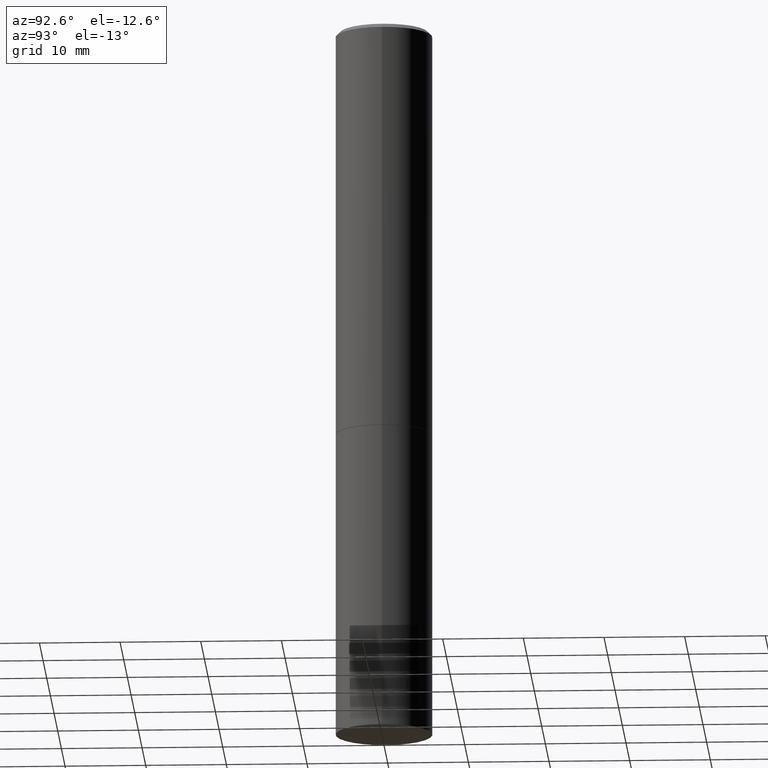
[diagram: clean part render]
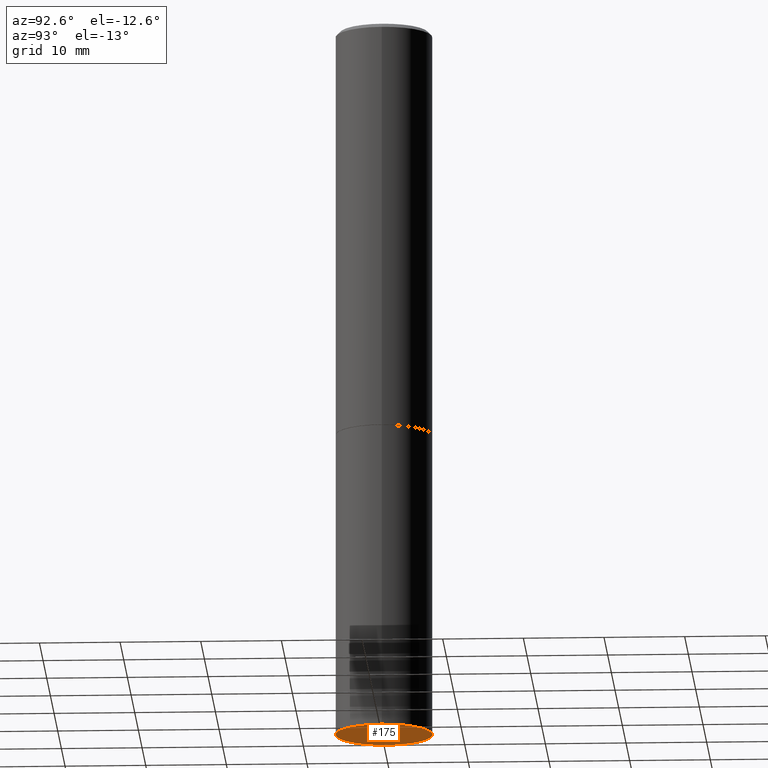
[diagram: same view with one face highlighted and labeled with its STEP entity id]
A machine part, auxiliary view. The second image highlights one B-rep face of the part: STEP entity #175.
In plain terms, the highlighted planar face has unit normal (0, -0, -1).
Its self-contained STEP definition (entity closure, byte-faithful):
#1 = ORIENTED_EDGE ( 'NONE', *, *, #260, .F. ) ;
#26 = VERTEX_POINT ( 'NONE', #94 ) ;
#55 = AXIS2_PLACEMENT_3D ( 'NONE', #330, #215, #75 ) ;
#74 = AXIS2_PLACEMENT_3D ( 'NONE', #183, #77, #356 ) ;
#75 = DIRECTION ( 'NONE',  ( 1.000000000000000000, -6.982962677686265133E-15, 0.000000000000000000 ) ) ;
#77 = DIRECTION ( 'NONE',  ( 2.438088387897960049E-29, -3.491481338843145188E-15, -1.000000000000000000 ) ) ;
#94 = CARTESIAN_POINT ( 'NONE',  ( -0.2361999999999999933, -7.943696905785525451E-15, -3.503899999999999793 ) ) ;
#153 = PLANE ( 'NONE',  #74 ) ;
#154 = DIRECTION ( 'NONE',  ( 1.000000000000000000, -6.982962677686265133E-15, 0.000000000000000000 ) ) ;
#165 = ORIENTED_EDGE ( 'NONE', *, *, #189, .F. ) ;
#175 = ADVANCED_FACE ( 'NONE', ( #250 ), #153, .T. ) ;
#180 = EDGE_LOOP ( 'NONE', ( #1, #165 ) ) ;
#183 = CARTESIAN_POINT ( 'NONE',  ( 1.649375784469581525E-15, 0.2361999999999877808, -3.503900000000000681 ) ) ;
#189 = EDGE_CURVE ( 'NONE', #26, #317, #205, .T. ) ;
#205 = CIRCLE ( 'NONE', #223, 0.2361999999999999933 ) ;
#209 = CIRCLE ( 'NONE', #55, 0.2361999999999999933 ) ;
#215 = DIRECTION ( 'NONE',  ( -2.445468806185136597E-29, 3.491481338843145583E-15, 1.000000000000000000 ) ) ;
#219 = DIRECTION ( 'NONE',  ( -2.445468806185136597E-29, 3.491481338843145583E-15, 1.000000000000000000 ) ) ;
#223 = AXIS2_PLACEMENT_3D ( 'NONE', #296, #219, #154 ) ;
#250 = FACE_OUTER_BOUND ( 'NONE', #180, .T. ) ;
#260 = EDGE_CURVE ( 'NONE', #317, #26, #209, .T. ) ;
#296 = CARTESIAN_POINT ( 'NONE',  ( 8.568678149992099474E-29, -1.223380146317249786E-14, -3.503899999999999793 ) ) ;
#314 = CARTESIAN_POINT ( 'NONE',  ( 0.2361999999999999933, -1.388317724764199281E-14, -3.503899999999999793 ) ) ;
#317 = VERTEX_POINT ( 'NONE', #314 ) ;
#330 = CARTESIAN_POINT ( 'NONE',  ( 8.568678149992099474E-29, -1.223380146317249786E-14, -3.503899999999999793 ) ) ;
#356 = DIRECTION ( 'NONE',  ( -1.000000000000000000, 6.982962677686265922E-15, -4.876176775795935793E-29 ) ) ;